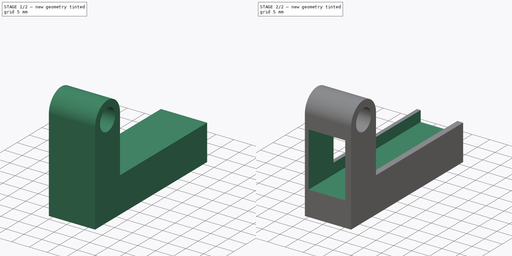
[diagram: build sequence overview — one tinted view per stage of 2, left to right]
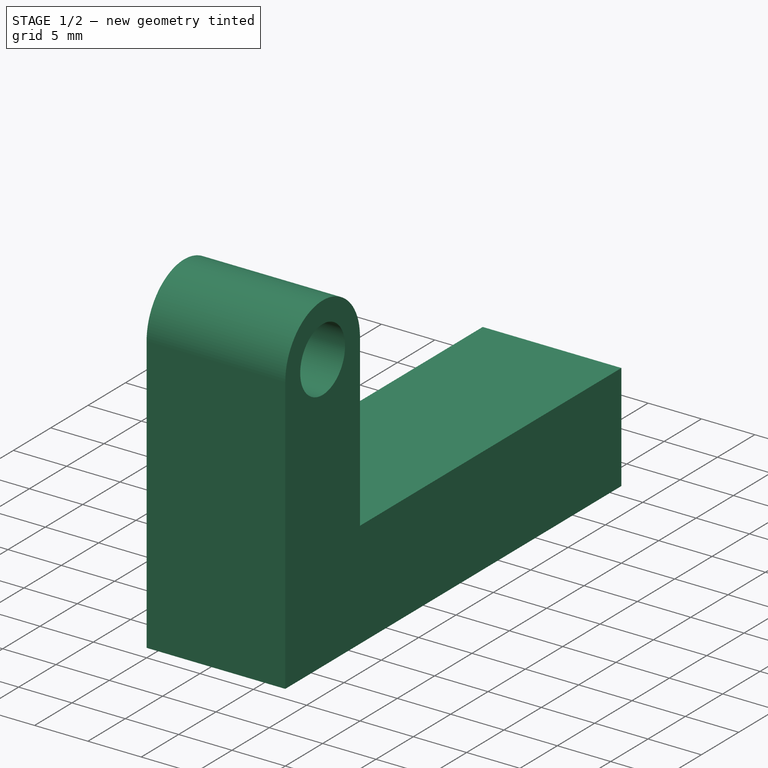
[diagram: stage 1 of 2 — iso view after this stage's code; geometry added in this stage tinted green]
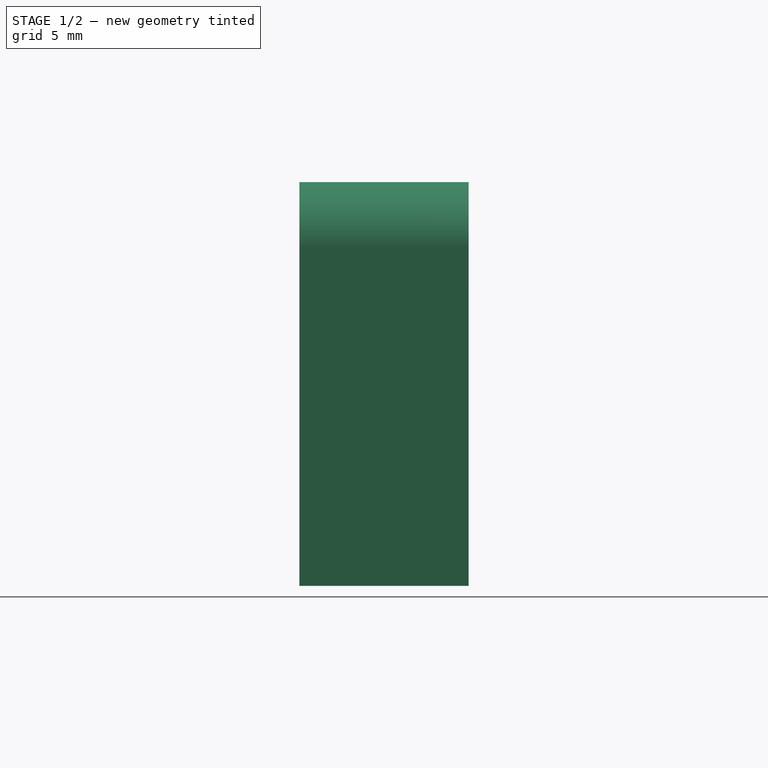
[diagram: stage 1 of 2 — front view after this stage's code; geometry added in this stage tinted green]
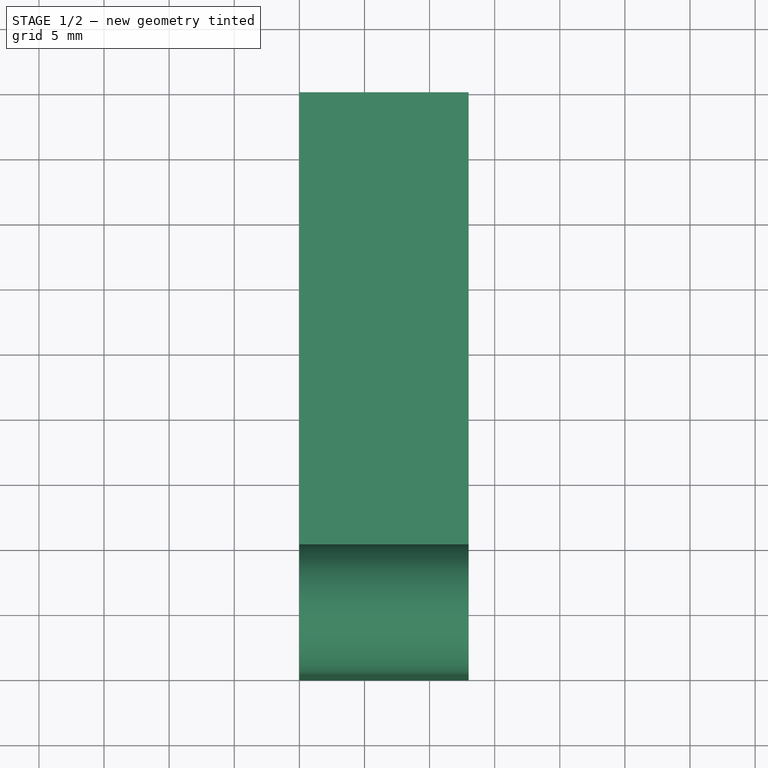
[diagram: stage 1 of 2 — top view after this stage's code; geometry added in this stage tinted green]
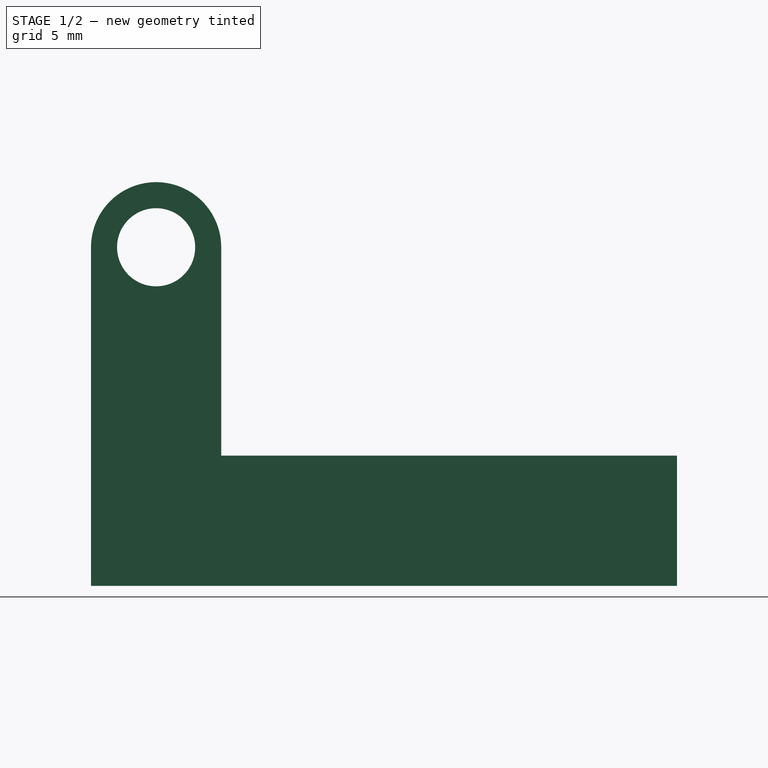
[diagram: stage 1 of 2 — right view after this stage's code; geometry added in this stage tinted green]
FCSTD DOCUMENT  (FreeCAD 0.20R29410 (Git))
Label: kv-02
License: All rights reserved
LicenseURL: http://en.wikipedia.org/wiki/All_rights_reserved
objects: Sketcher::SketchObject×2, PartDesign::Plane×2, PartDesign::Pad×1, PartDesign::Pocket×1, PartDesign::Body×1
note: 9 computed .brp shape members not serialized (recipe doc carries the construction recipe); baked Part::Feature solids carry a one-line shape summary decoded from their .brp

FEATURE [Sketcher::SketchObject] Sketch
  FullyConstrained = true
  MapMode = 5
  Placement = pos=(0,0,0) rot=(0.57735,0.57735,0.57735;2.0944rad)
  Support = -> [YZ_Plane]
  sketch-geometry (8):
    g0: LineSegment StartX=0 StartY=0 StartZ=0 EndX=45 EndY=0 EndZ=0
    g1: LineSegment StartX=45 StartY=0 StartZ=0 EndX=45 EndY=10 EndZ=0
    g2: LineSegment StartX=45 StartY=10 StartZ=0 EndX=20 EndY=10 EndZ=0
    g3: LineSegment StartX=20 StartY=10 StartZ=0 EndX=10 EndY=10 EndZ=0
    g4: LineSegment StartX=10 StartY=10 StartZ=0 EndX=10 EndY=26 EndZ=0
    g5: ArcOfCircle CenterX=5 CenterY=26 CenterZ=0 NormalX=0 NormalY=0 NormalZ=1 AngleXU=0 Radius=5 StartAngle=0 EndAngle=3.14159
    g6: LineSegment StartX=9e-16 StartY=26 StartZ=0 EndX=0 EndY=0 EndZ=0
    g7: Circle CenterX=5 CenterY=26 CenterZ=0 NormalX=0 NormalY=0 NormalZ=1 AngleXU=0 Radius=3
  constraints (22):
    c: Coincident(g-1,g0)
    c: PointOnObject(g0,g-1)
    c: Coincident(g0,g1)
    c: Coincident(g1,g2)
    c: Horizontal(g2)
    c: Coincident(g2,g3)
    c: Horizontal(g3)
    c: Coincident(g3,g4)
    c: Vertical(g4)
    c: Tangent(g4,g5) = -1.5708
    c: PointOnObject(g5,g-2)
    c: Coincident(g5,g6)
    c: Coincident(g6,g0)
    c: Coincident(g7,g5)
    c: Vertical(g1)
    c: DistanceX(g0,g0) = 45
    c: DistanceX(g2,g2) = 25
    c: DistanceX(g3,g3) = 10
    c: DistanceY(g1,g1) = 10
    c: DistanceY(g6,g6) = 26
    c: DistanceY(g4,g4) = 16
    c: Radius(g7) = 3
FEATURE [PartDesign::Pad] Pad
  Direction = (1,-2e-16,3e-16)
  Length = 13
  Length2 = 10
  Placement = pos=(0,0,0) rot=(0.57735,0.57735,0.57735;2.0944rad)
  Profile = -> Sketch
  ReferenceAxis = -> Sketch [N_Axis]
  Type = 0
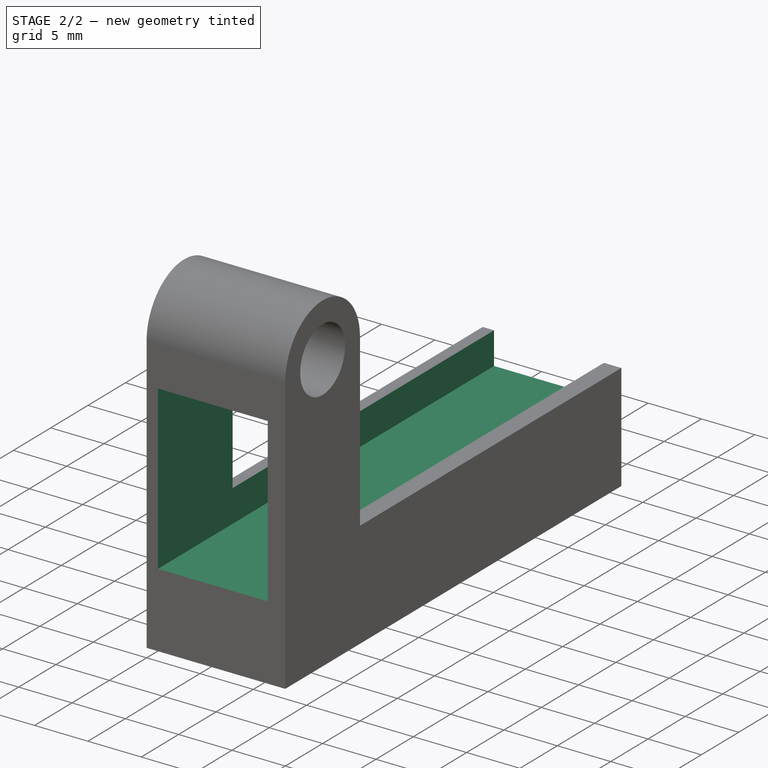
[diagram: stage 2 of 2 — iso view after this stage's code; geometry added in this stage tinted green]
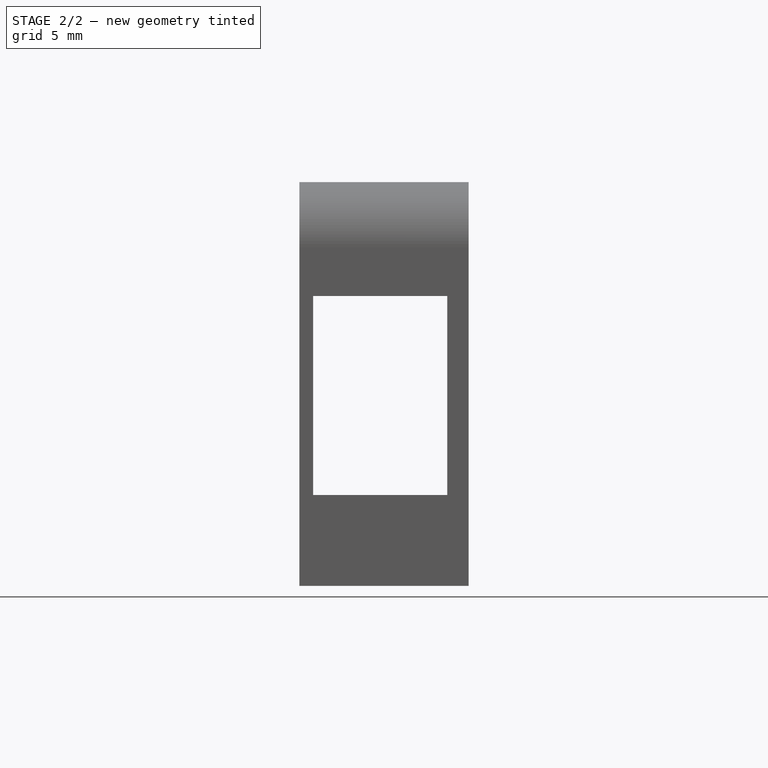
[diagram: stage 2 of 2 — front view after this stage's code; geometry added in this stage tinted green]
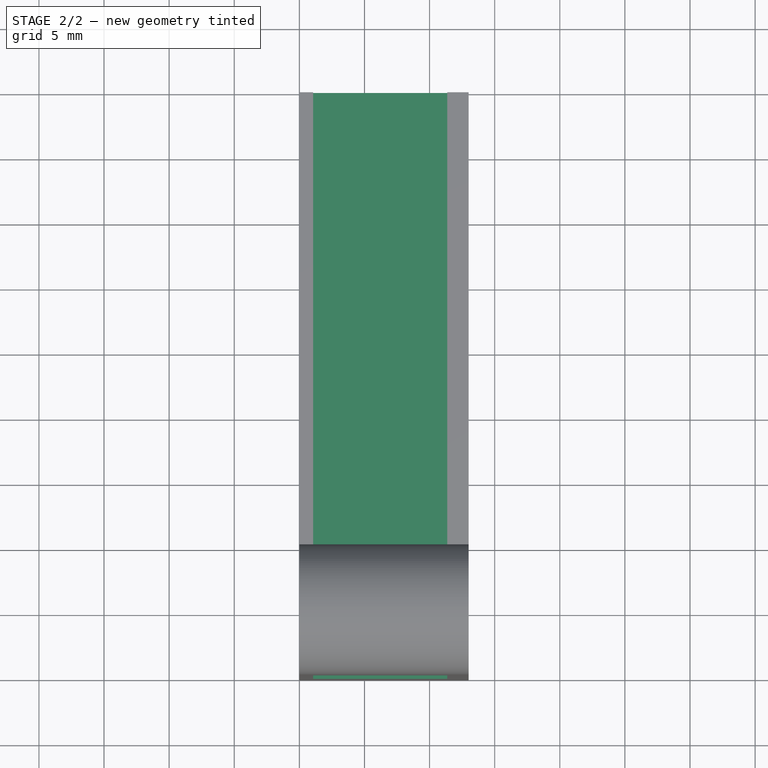
[diagram: stage 2 of 2 — top view after this stage's code; geometry added in this stage tinted green]
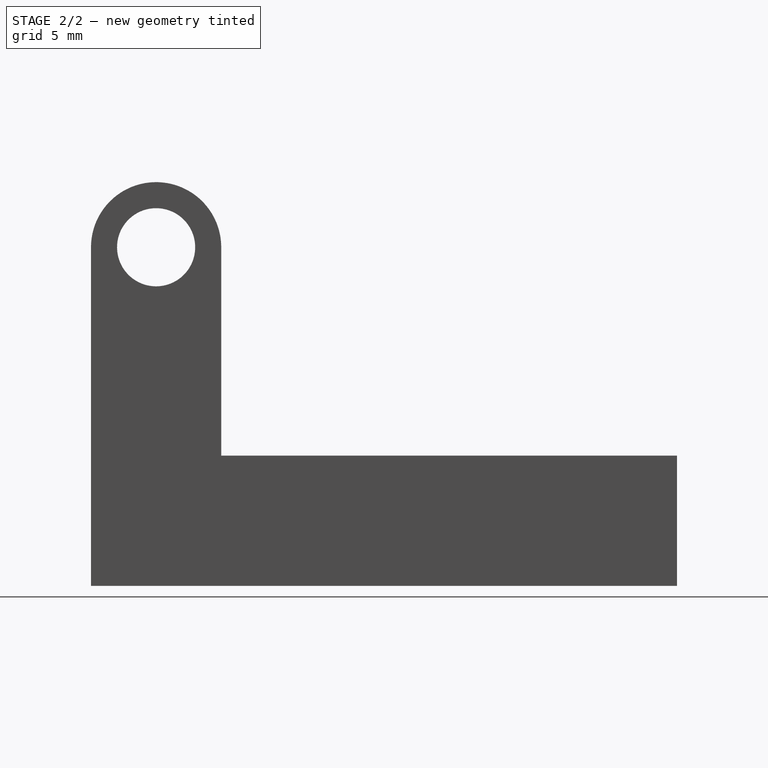
[diagram: stage 2 of 2 — right view after this stage's code; geometry added in this stage tinted green]
FEATURE [PartDesign::Plane] DatumPlane
  Length = 66.553
  MapMode = 5
  Placement = pos=(2e-14,45,-1.5e-14) rot=(0.57735,0.57735,0.57735;4.18879rad)
  ResizeMode = 0
  Support = -> [Pad]
  Width = 60.5804
FEATURE [Sketcher::SketchObject] Sketch001
  FullyConstrained = false
  MapMode = 5
  Placement = pos=(2e-14,45,-1.5e-14) rot=(0.57735,0.57735,0.57735;4.18879rad)
  Support = -> [DatumPlane]
  sketch-geometry (4):
    g0: LineSegment StartX=6.97732 StartY=1.06202 StartZ=0 EndX=22.258 EndY=1.06202 EndZ=0
    g1: LineSegment StartX=22.258 StartY=1.06202 StartZ=0 EndX=22.258 EndY=11.3613 EndZ=0
    g2: LineSegment StartX=22.258 StartY=11.3613 StartZ=0 EndX=6.97732 EndY=11.3613 EndZ=0
    g3: LineSegment StartX=6.97732 StartY=11.3613 StartZ=0 EndX=6.97732 EndY=1.06202 EndZ=0
  constraints (8):
    c: Coincident(g0,g1)
    c: Coincident(g1,g2)
    c: Coincident(g2,g3)
    c: Coincident(g3,g0)
    c: Horizontal(g0)
    c: Horizontal(g2)
    c: Vertical(g1)
    c: Vertical(g3)
FEATURE [PartDesign::Pocket] Pocket
  BaseFeature = -> Pad
  Direction = (-4e-16,-1,2e-16)
  Length = 46
  Length2 = 5
  Placement = pos=(0,0,0) rot=(0.57735,0.57735,0.57735;2.0944rad)
  Profile = -> Sketch001
  ReferenceAxis = -> Sketch001 [N_Axis]
  Type = 0
FEATURE [PartDesign::Plane] DatumPlane001
  Length = 66.553
  MapMode = 5
  Placement = pos=(4.4e-15,10,-6.7e-15) rot=(0.57735,0.57735,0.57735;4.18879rad)
  ResizeMode = 0
  Support = -> [Pocket]
  Width = 60.5804
FEATURE [PartDesign::Body] Body
  Group = -> [Sketch,Pad,DatumPlane,Sketch001,Pocket,DatumPlane001]
  Origin = -> Origin
  Tip = -> Pocket
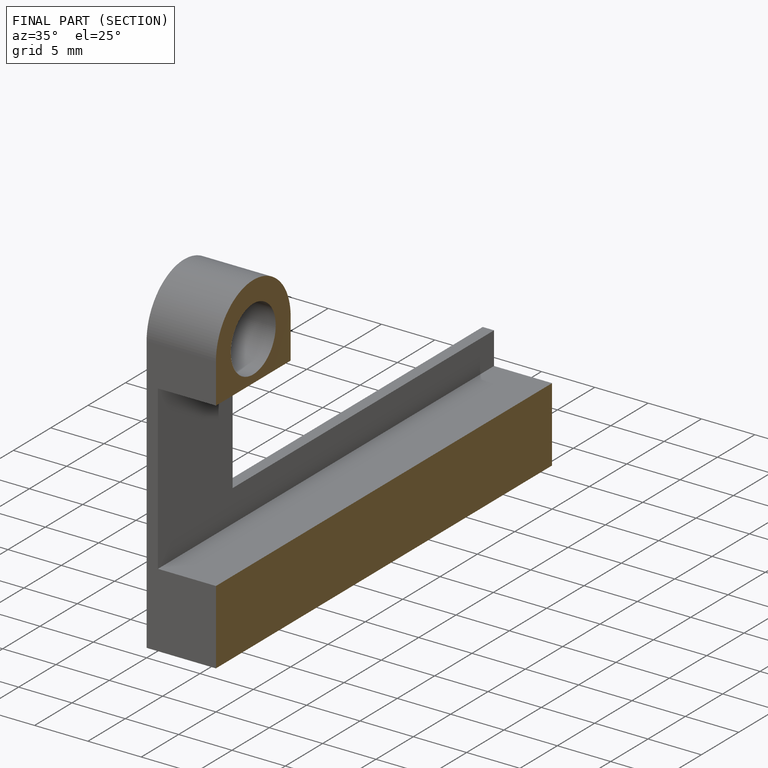
[diagram: finished part — half-section view (interior)]
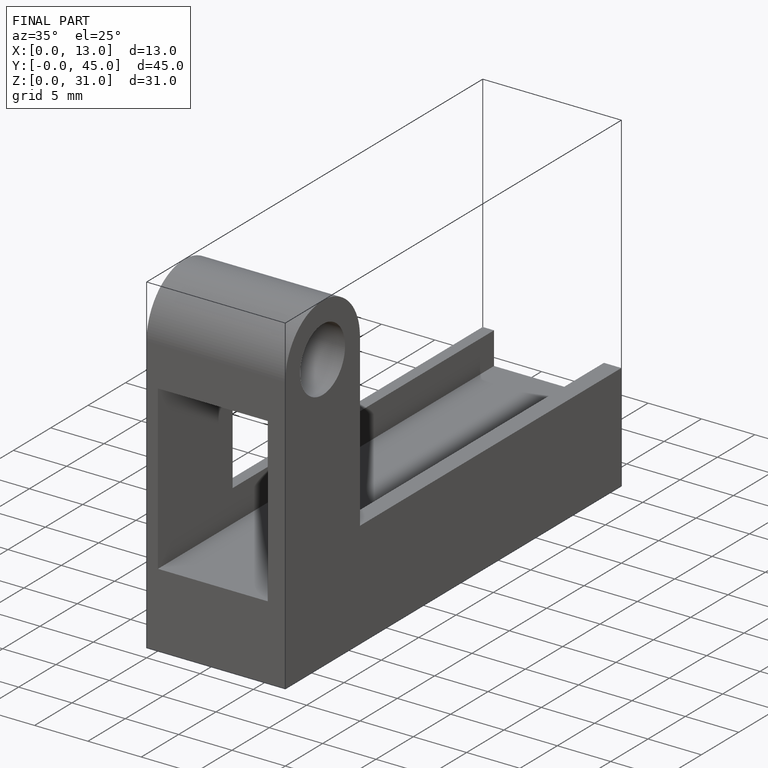
[diagram: finished part — iso view with bounding-box wireframe]
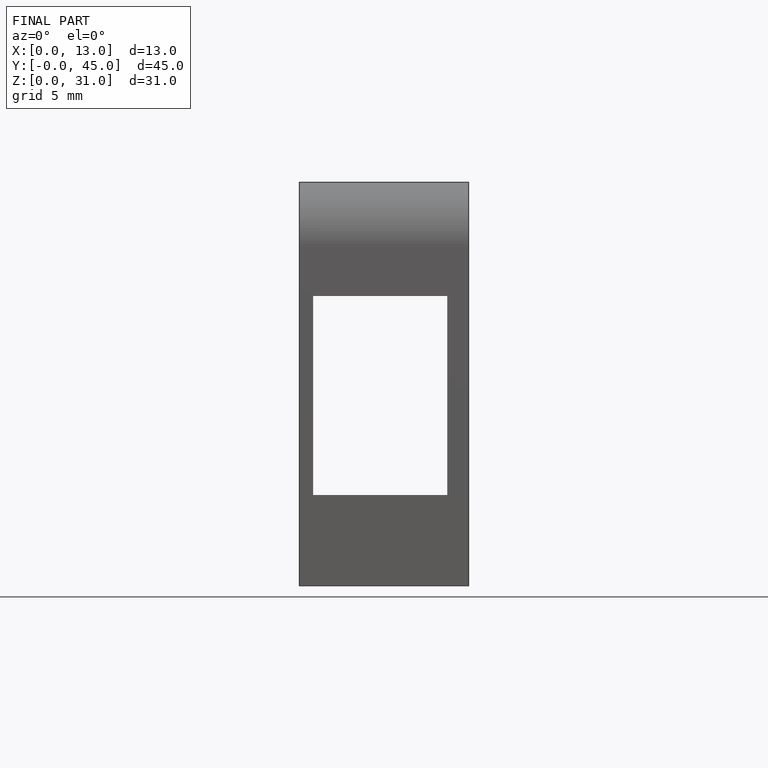
[diagram: finished part — front view with bounding-box wireframe]
